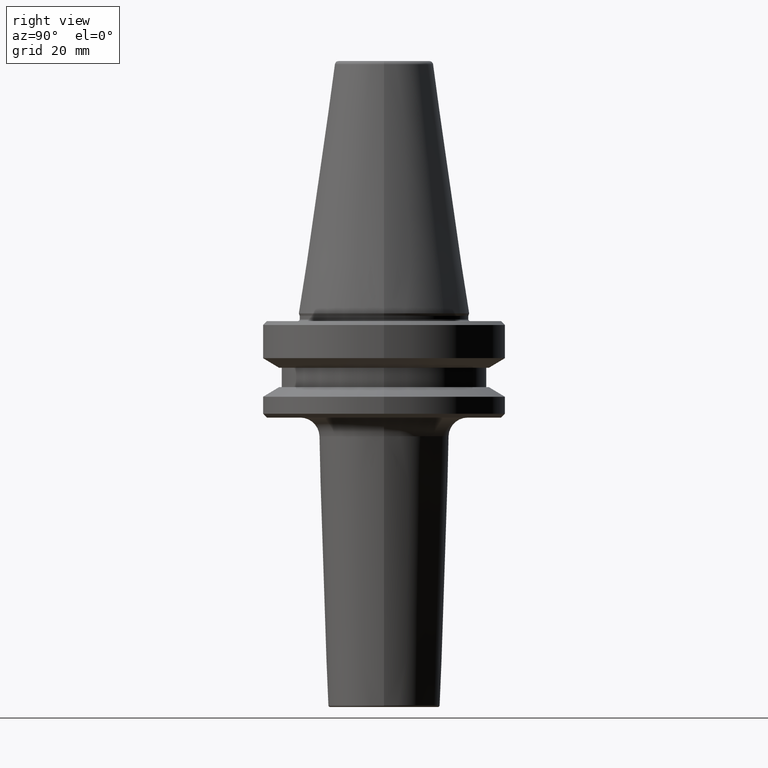
[diagram: clean part render]
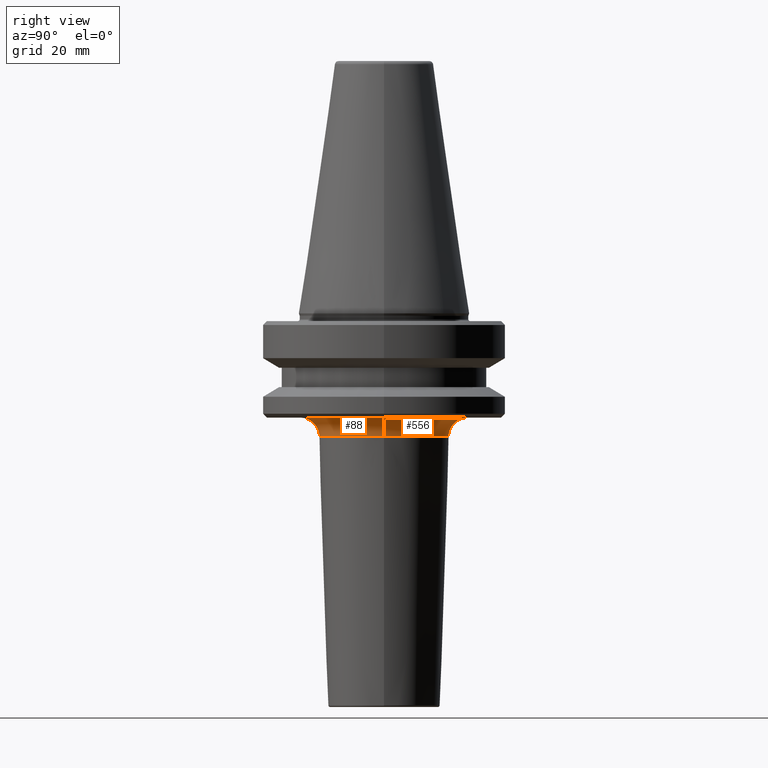
[diagram: same view with one multi-face feature highlighted, each face labeled with its STEP entity id]
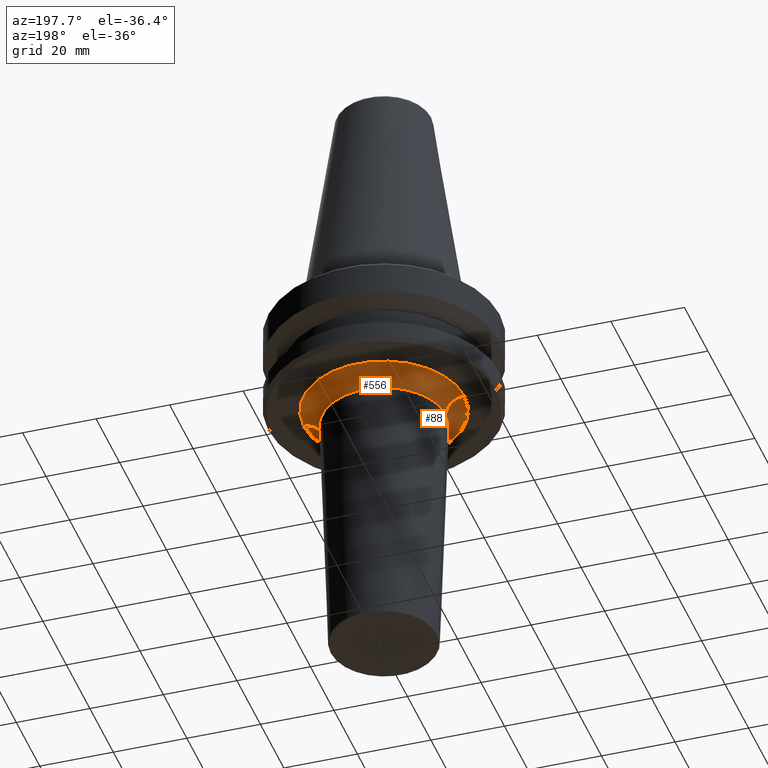
[diagram: same view with one multi-face feature highlighted, each face labeled with its STEP entity id]
A machine part, right view. The highlighted faces form ONE feature: a constant-radius fillet chain: 2 tangent blend faces with common blend radius 5 mm. The faces share edges in the B-rep.
A second angle (auxiliary view) of the same feature is appended — it is thin or edge-on in the first view.
Their STEP definitions:
[1] entity #556 (Torus):
#10 = CIRCLE ( 'NONE', #313, 21.83611033993455000 ) ;
#20 = CIRCLE ( 'NONE', #565, 5.000000000000018700 ) ;
#44 = CARTESIAN_POINT ( 'NONE',  ( 16.83888580503877800, 0.0000000000000000000, -97.23342584884484600 ) ) ;
#85 = ORIENTED_EDGE ( 'NONE', *, *, #282, .T. ) ;
#86 = EDGE_CURVE ( 'NONE', #729, #492, #514, .T. ) ;
#222 = DIRECTION ( 'NONE',  ( 1.224646799147353200E-016, 1.000000000000000000, 0.0000000000000000000 ) ) ;
#228 = ORIENTED_EDGE ( 'NONE', *, *, #703, .F. ) ;
#230 = DIRECTION ( 'NONE',  ( -0.0000000000000000000, -0.0000000000000000000, 1.000000000000000000 ) ) ;
#236 = CARTESIAN_POINT ( 'NONE',  ( 0.0000000000000000000, 0.0000000000000000000, -97.40000000000803500 ) ) ;
#254 = DIRECTION ( 'NONE',  ( -0.0000000000000000000, -0.0000000000000000000, 1.000000000000000000 ) ) ;
#274 = EDGE_CURVE ( 'NONE', #424, #652, #20, .T. ) ;
#282 = EDGE_CURVE ( 'NONE', #652, #492, #617, .T. ) ;
#313 = AXIS2_PLACEMENT_3D ( 'NONE', #732, #254, #818 ) ;
#316 = FACE_OUTER_BOUND ( 'NONE', #528, .T. ) ;
#335 = CARTESIAN_POINT ( 'NONE',  ( -21.83611033993455000, 2.674152263362926900E-015, -92.40000000000800600 ) ) ;
#342 = ORIENTED_EDGE ( 'NONE', *, *, #86, .F. ) ;
#359 = ORIENTED_EDGE ( 'NONE', *, *, #274, .T. ) ;
#424 = VERTEX_POINT ( 'NONE', #664 ) ;
#438 = DIRECTION ( 'NONE',  ( 0.0000000000000000000, -1.000000000000000000, 0.0000000000000000000 ) ) ;
#459 = CARTESIAN_POINT ( 'NONE',  ( -16.83888580503877800, 2.368160511798890900E-015, -97.23342584884484600 ) ) ;
#481 = DIRECTION ( 'NONE',  ( 1.000000000000000000, 0.0000000000000000000, 0.0000000000000000000 ) ) ;
#492 = VERTEX_POINT ( 'NONE', #459 ) ;
#514 = CIRCLE ( 'NONE', #907, 5.000000000000015100 ) ;
#525 = TOROIDAL_SURFACE ( 'NONE', #914, 21.83611033993455000, 5.000000000000016900 ) ;
#528 = EDGE_LOOP ( 'NONE', ( #342, #228, #359, #85 ) ) ;
#556 = ADVANCED_FACE ( 'NONE', ( #316 ), #525, .F. ) ;
#565 = AXIS2_PLACEMENT_3D ( 'NONE', #606, #438, #791 ) ;
#606 = CARTESIAN_POINT ( 'NONE',  ( 21.83611033993455000, 0.0000000000000000000, -97.40000000000803500 ) ) ;
#617 = CIRCLE ( 'NONE', #727, 16.83888580503877800 ) ;
#652 = VERTEX_POINT ( 'NONE', #44 ) ;
#664 = CARTESIAN_POINT ( 'NONE',  ( 21.83611033993455000, 0.0000000000000000000, -92.40000000000800600 ) ) ;
#703 = EDGE_CURVE ( 'NONE', #424, #729, #10, .T. ) ;
#706 = CARTESIAN_POINT ( 'NONE',  ( -21.83611033993455000, 2.674152263362926900E-015, -97.40000000000803500 ) ) ;
#712 = CARTESIAN_POINT ( 'NONE',  ( 0.0000000000000000000, 0.0000000000000000000, -97.23342584884484600 ) ) ;
#727 = AXIS2_PLACEMENT_3D ( 'NONE', #712, #230, #796 ) ;
#729 = VERTEX_POINT ( 'NONE', #335 ) ;
#732 = CARTESIAN_POINT ( 'NONE',  ( 0.0000000000000000000, 0.0000000000000000000, -92.40000000000800600 ) ) ;
#787 = DIRECTION ( 'NONE',  ( -1.000000000000000000, 1.224646799147353700E-016, 0.0000000000000000000 ) ) ;
#791 = DIRECTION ( 'NONE',  ( 0.0000000000000000000, 0.0000000000000000000, -1.000000000000000000 ) ) ;
#796 = DIRECTION ( 'NONE',  ( 1.000000000000000000, 0.0000000000000000000, 0.0000000000000000000 ) ) ;
#818 = DIRECTION ( 'NONE',  ( 1.000000000000000000, 0.0000000000000000000, 0.0000000000000000000 ) ) ;
#907 = AXIS2_PLACEMENT_3D ( 'NONE', #706, #222, #787 ) ;
#914 = AXIS2_PLACEMENT_3D ( 'NONE', #236, #958, #481 ) ;
#958 = DIRECTION ( 'NONE',  ( -0.0000000000000000000, -0.0000000000000000000, 1.000000000000000000 ) ) ;
[2] entity #88 (Torus):
#20 = CIRCLE ( 'NONE', #565, 5.000000000000018700 ) ;
#44 = CARTESIAN_POINT ( 'NONE',  ( 16.83888580503877800, 0.0000000000000000000, -97.23342584884484600 ) ) ;
#66 = DIRECTION ( 'NONE',  ( -0.0000000000000000000, -0.0000000000000000000, 1.000000000000000000 ) ) ;
#86 = EDGE_CURVE ( 'NONE', #729, #492, #514, .T. ) ;
#88 = ADVANCED_FACE ( 'NONE', ( #939 ), #730, .F. ) ;
#124 = DIRECTION ( 'NONE',  ( 1.000000000000000000, 0.0000000000000000000, 0.0000000000000000000 ) ) ;
#143 = CIRCLE ( 'NONE', #772, 16.83888580503877800 ) ;
#169 = ORIENTED_EDGE ( 'NONE', *, *, #280, .F. ) ;
#218 = DIRECTION ( 'NONE',  ( -0.0000000000000000000, -0.0000000000000000000, 1.000000000000000000 ) ) ;
#222 = DIRECTION ( 'NONE',  ( 1.224646799147353200E-016, 1.000000000000000000, 0.0000000000000000000 ) ) ;
#225 = AXIS2_PLACEMENT_3D ( 'NONE', #707, #308, #871 ) ;
#272 = CIRCLE ( 'NONE', #671, 21.83611033993455000 ) ;
#274 = EDGE_CURVE ( 'NONE', #424, #652, #20, .T. ) ;
#280 = EDGE_CURVE ( 'NONE', #729, #424, #272, .T. ) ;
#308 = DIRECTION ( 'NONE',  ( -0.0000000000000000000, -0.0000000000000000000, 1.000000000000000000 ) ) ;
#335 = CARTESIAN_POINT ( 'NONE',  ( -21.83611033993455000, 2.674152263362926900E-015, -92.40000000000800600 ) ) ;
#424 = VERTEX_POINT ( 'NONE', #664 ) ;
#438 = DIRECTION ( 'NONE',  ( 0.0000000000000000000, -1.000000000000000000, 0.0000000000000000000 ) ) ;
#459 = CARTESIAN_POINT ( 'NONE',  ( -16.83888580503877800, 2.368160511798890900E-015, -97.23342584884484600 ) ) ;
#492 = VERTEX_POINT ( 'NONE', #459 ) ;
#514 = CIRCLE ( 'NONE', #907, 5.000000000000015100 ) ;
#547 = CARTESIAN_POINT ( 'NONE',  ( 0.0000000000000000000, 0.0000000000000000000, -92.40000000000800600 ) ) ;
#565 = AXIS2_PLACEMENT_3D ( 'NONE', #606, #438, #791 ) ;
#606 = CARTESIAN_POINT ( 'NONE',  ( 21.83611033993455000, 0.0000000000000000000, -97.40000000000803500 ) ) ;
#628 = DIRECTION ( 'NONE',  ( 1.000000000000000000, 0.0000000000000000000, 0.0000000000000000000 ) ) ;
#640 = ORIENTED_EDGE ( 'NONE', *, *, #86, .T. ) ;
#652 = VERTEX_POINT ( 'NONE', #44 ) ;
#664 = CARTESIAN_POINT ( 'NONE',  ( 21.83611033993455000, 0.0000000000000000000, -92.40000000000800600 ) ) ;
#671 = AXIS2_PLACEMENT_3D ( 'NONE', #547, #66, #628 ) ;
#677 = EDGE_LOOP ( 'NONE', ( #169, #640, #832, #779 ) ) ;
#702 = CARTESIAN_POINT ( 'NONE',  ( 0.0000000000000000000, 0.0000000000000000000, -97.23342584884484600 ) ) ;
#706 = CARTESIAN_POINT ( 'NONE',  ( -21.83611033993455000, 2.674152263362926900E-015, -97.40000000000803500 ) ) ;
#707 = CARTESIAN_POINT ( 'NONE',  ( 0.0000000000000000000, 0.0000000000000000000, -97.40000000000803500 ) ) ;
#729 = VERTEX_POINT ( 'NONE', #335 ) ;
#730 = TOROIDAL_SURFACE ( 'NONE', #225, 21.83611033993455000, 5.000000000000016900 ) ;
#772 = AXIS2_PLACEMENT_3D ( 'NONE', #702, #218, #124 ) ;
#779 = ORIENTED_EDGE ( 'NONE', *, *, #274, .F. ) ;
#787 = DIRECTION ( 'NONE',  ( -1.000000000000000000, 1.224646799147353700E-016, 0.0000000000000000000 ) ) ;
#791 = DIRECTION ( 'NONE',  ( 0.0000000000000000000, 0.0000000000000000000, -1.000000000000000000 ) ) ;
#832 = ORIENTED_EDGE ( 'NONE', *, *, #1003, .T. ) ;
#871 = DIRECTION ( 'NONE',  ( 1.000000000000000000, 0.0000000000000000000, 0.0000000000000000000 ) ) ;
#907 = AXIS2_PLACEMENT_3D ( 'NONE', #706, #222, #787 ) ;
#939 = FACE_OUTER_BOUND ( 'NONE', #677, .T. ) ;
#1003 = EDGE_CURVE ( 'NONE', #492, #652, #143, .T. ) ;